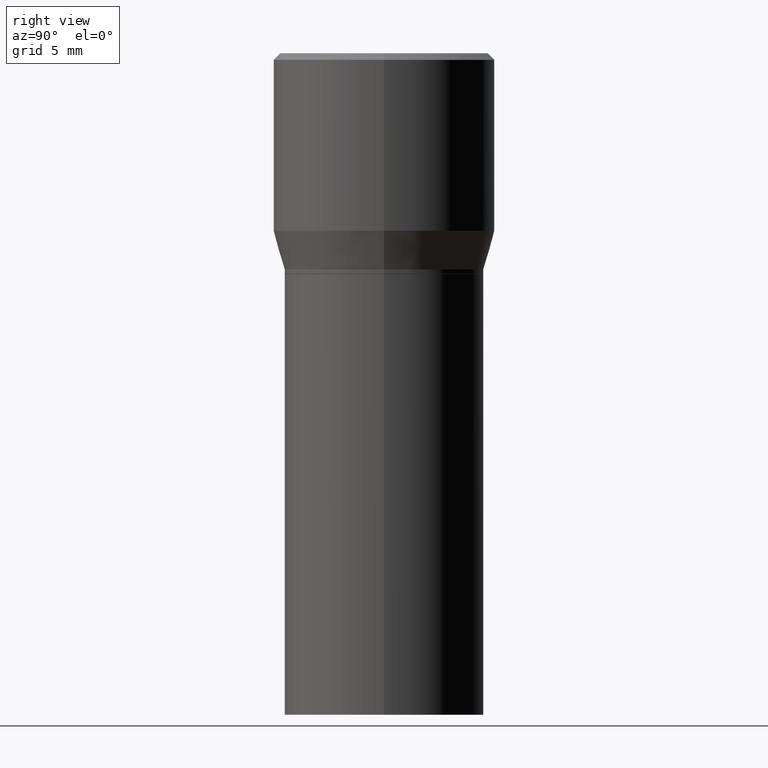
[diagram: clean part render]
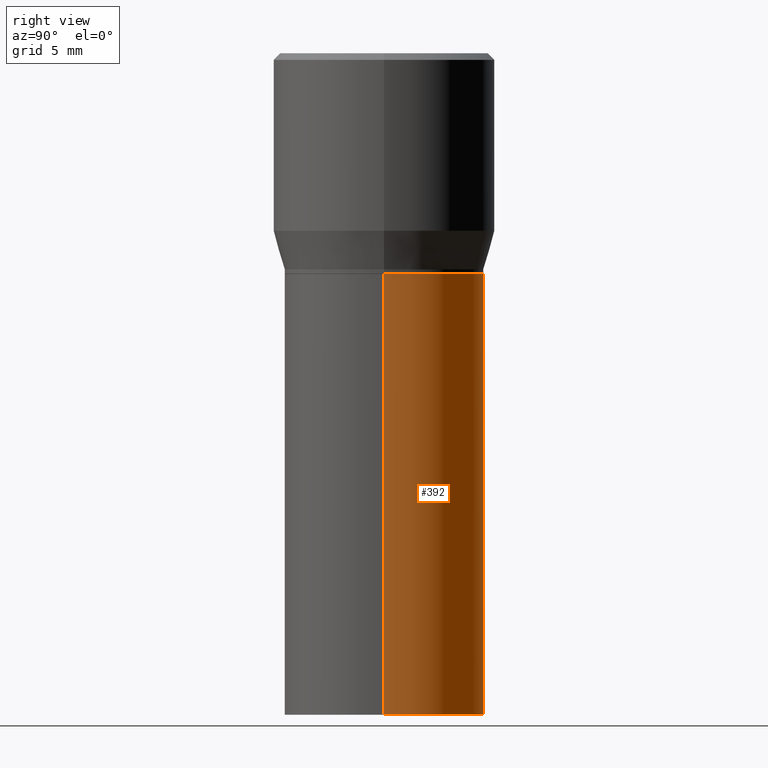
[diagram: same view with one face highlighted and labeled with its STEP entity id]
A machine part, right view. The second image highlights one B-rep face of the part: STEP entity #392.
In plain terms, the highlighted cylindrical surface (partial cylindrical patch) has radius 5.7544 mm, axis along (-0, 0, 1).
Its self-contained STEP definition (entity closure, byte-faithful):
#10 = EDGE_CURVE ( 'NONE', #289, #258, #319, .T. ) ;
#38 = AXIS2_PLACEMENT_3D ( 'NONE', #322, #57, #461 ) ;
#44 = CIRCLE ( 'NONE', #38, 0.2265500000000000014 ) ;
#57 = DIRECTION ( 'NONE',  ( -2.445468806185136597E-29, 3.491481338843145583E-15, 1.000000000000000000 ) ) ;
#75 = CARTESIAN_POINT ( 'NONE',  ( -0.2265500000000000014, 1.609734567864506981E-15, -1.114384744697248863E-29 ) ) ;
#89 = EDGE_CURVE ( 'NONE', #285, #128, #44, .T. ) ;
#91 = ORIENTED_EDGE ( 'NONE', *, *, #238, .F. ) ;
#115 = CARTESIAN_POINT ( 'NONE',  ( 0.2265500000000000014, -3.327730864051397109E-15, -0.5000000000000001110 ) ) ;
#118 = CARTESIAN_POINT ( 'NONE',  ( 0.2265500000000000014, -1.581990194629823726E-15, 1.104697848556569281E-29 ) ) ;
#128 = VERTEX_POINT ( 'NONE', #175 ) ;
#155 = CARTESIAN_POINT ( 'NONE',  ( 0.000000000000000000, 0.000000000000000000, 0.000000000000000000 ) ) ;
#174 = DIRECTION ( 'NONE',  ( -2.445468806185136597E-29, 3.491481338843145583E-15, 1.000000000000000000 ) ) ;
#175 = CARTESIAN_POINT ( 'NONE',  ( -0.2265500000000000014, -1.881746770978639193E-15, -0.5000000000000001110 ) ) ;
#182 = CARTESIAN_POINT ( 'NONE',  ( -0.2265500000000000014, -1.881746770978639193E-15, -1.500000000000000222 ) ) ;
#183 = CARTESIAN_POINT ( 'NONE',  ( 0.2265500000000000014, -6.819212202894542298E-15, -1.500000000000000222 ) ) ;
#233 = AXIS2_PLACEMENT_3D ( 'NONE', #155, #437, #305 ) ;
#238 = EDGE_CURVE ( 'NONE', #289, #285, #395, .T. ) ;
#258 = VERTEX_POINT ( 'NONE', #182 ) ;
#285 = VERTEX_POINT ( 'NONE', #115 ) ;
#289 = VERTEX_POINT ( 'NONE', #183 ) ;
#290 = EDGE_CURVE ( 'NONE', #258, #128, #333, .T. ) ;
#293 = DIRECTION ( 'NONE',  ( -2.445468806185136877E-29, 3.491481338843145188E-15, 1.000000000000000000 ) ) ;
#305 = DIRECTION ( 'NONE',  ( 1.000000000000000000, -6.982962677686266711E-15, 4.876176775795935793E-29 ) ) ;
#319 = CIRCLE ( 'NONE', #425, 0.2265500000000000014 ) ;
#322 = CARTESIAN_POINT ( 'NONE',  ( 1.222734403092568719E-29, -1.745740669421573186E-15, -0.5000000000000001110 ) ) ;
#327 = DIRECTION ( 'NONE',  ( 1.000000000000000000, -6.982962677686267499E-15, 0.000000000000000000 ) ) ;
#333 = LINE ( 'NONE', #75, #436 ) ;
#335 = DIRECTION ( 'NONE',  ( -2.445468806185136877E-29, 3.491481338843145188E-15, 1.000000000000000000 ) ) ;
#344 = FACE_OUTER_BOUND ( 'NONE', #443, .T. ) ;
#354 = ORIENTED_EDGE ( 'NONE', *, *, #290, .T. ) ;
#375 = CYLINDRICAL_SURFACE ( 'NONE', #233, 0.2265500000000000014 ) ;
#387 = CARTESIAN_POINT ( 'NONE',  ( 3.668203209277704895E-29, -5.237222008264718177E-15, -1.500000000000000222 ) ) ;
#392 = ADVANCED_FACE ( 'NONE', ( #344 ), #375, .T. ) ;
#395 = LINE ( 'NONE', #118, #413 ) ;
#413 = VECTOR ( 'NONE', #293, 39.37007874015748143 ) ;
#416 = ORIENTED_EDGE ( 'NONE', *, *, #10, .T. ) ;
#425 = AXIS2_PLACEMENT_3D ( 'NONE', #387, #174, #327 ) ;
#436 = VECTOR ( 'NONE', #335, 39.37007874015748143 ) ;
#437 = DIRECTION ( 'NONE',  ( -2.445468806185136597E-29, 3.491481338843145583E-15, 1.000000000000000000 ) ) ;
#443 = EDGE_LOOP ( 'NONE', ( #416, #354, #447, #91 ) ) ;
#447 = ORIENTED_EDGE ( 'NONE', *, *, #89, .F. ) ;
#461 = DIRECTION ( 'NONE',  ( 1.000000000000000000, -6.982962677686266711E-15, 0.000000000000000000 ) ) ;